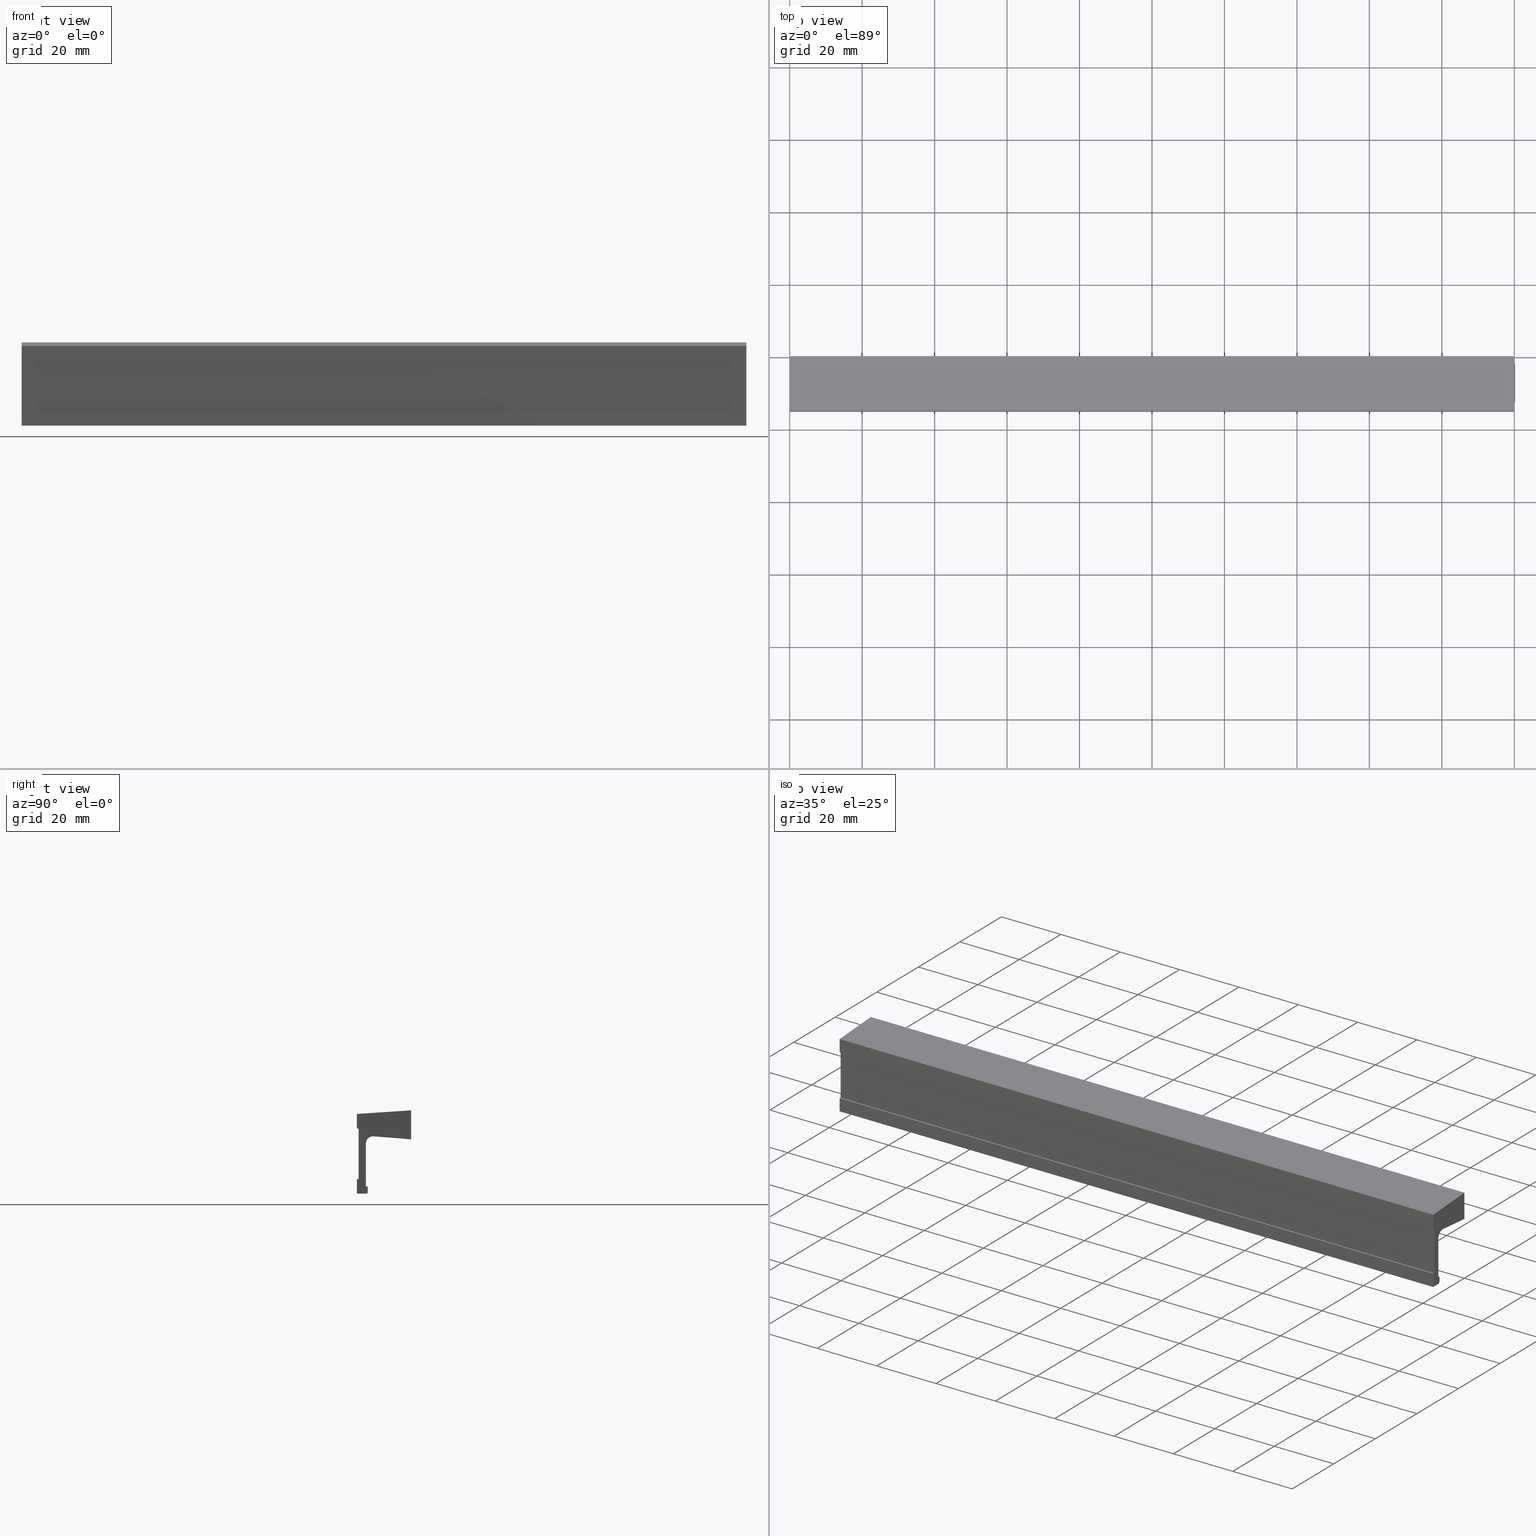
[diagram: canonical four-view strip — front | top / right | iso, engineering-drawing reading convention]
A machine part, canonical four-view strip (front | top / right | iso — engineering-drawing reading convention). The complete STEP part file that produces these views, byte-faithful:
ISO-10303-21;
HEADER;
/****************************************************************
 * Generated by software with PDE/Lib inside                    *
 * PDElib Version 4.4.1-0003, patched  Thursday August 19 11:58 *
 * International Technegroup Inc. (www.iti-oh.com)              *
 ****************************************************************/
FILE_DESCRIPTION((''),'2;1');
FILE_NAME('','2005-10-12T14:09:30',(''),(''),'','CADfix','');
FILE_SCHEMA(('AUTOMOTIVE_DESIGN'));
ENDSEC;
DATA;
#5=APPLICATION_CONTEXT('automotive design');
#6=APPLICATION_PROTOCOL_DEFINITION('Draft International Standard','automotive_design',1998,#5);
#7=PRODUCT_CONTEXT('None',#5,'mechanical');
#8=PRODUCT('pull','','None',(#7));
#9=PRODUCT_RELATED_PRODUCT_CATEGORY('part','description',(#8));
#10=PRODUCT_DEFINITION_FORMATION('None','None',#8);
#11=PRODUCT_DEFINITION_CONTEXT('part definition',#5,'design');
#12=PRODUCT_DEFINITION('None','None',#10,#11);
#18=(NAMED_UNIT(*)PLANE_ANGLE_UNIT()SI_UNIT($,.RADIAN.));
#19=DIMENSIONAL_EXPONENTS(0.0,0.0,0.0,0.0,0.0,0.0,0.0);
#20=PLANE_ANGLE_MEASURE_WITH_UNIT(PLANE_ANGLE_MEASURE(0.017453292500000),#18);
#24=(CONVERSION_BASED_UNIT('DEGREE',#20)NAMED_UNIT(#19)PLANE_ANGLE_UNIT());
#28=(NAMED_UNIT(*)SI_UNIT($,.STERADIAN.)SOLID_ANGLE_UNIT());
#32=(LENGTH_UNIT()NAMED_UNIT(*)SI_UNIT(.MILLI.,.METRE.));
#34=UNCERTAINTY_MEASURE_WITH_UNIT(LENGTH_MEASURE(0.001000000000000),#32,'DISTANCE_ACCURACY_VALUE','');
#36=(GEOMETRIC_REPRESENTATION_CONTEXT(3)GLOBAL_UNCERTAINTY_ASSIGNED_CONTEXT((#34))GLOBAL_UNIT_ASSIGNED_CONTEXT((#24,#28,#32))REPRESENTATION_CONTEXT('None','None'));
#37=AXIS2_PLACEMENT_3D('',#38,#39,#40);
#38=CARTESIAN_POINT('',(0.0,0.0,0.0));
#39=DIRECTION('',(0.0,0.0,1.0));
#40=DIRECTION('',(1.0,0.0,0.0));
#41=ADVANCED_BREP_SHAPE_REPRESENTATION('',(#37,#910),#36);
#42=PRODUCT_DEFINITION_SHAPE('','',#12);
#43=SHAPE_DEFINITION_REPRESENTATION(#42,#41);
#44=CARTESIAN_POINT('',(173.504623999400310,-10.250000000000000,-4.882311356408231));
#45=CARTESIAN_POINT('',(173.622312642992140,-10.250000000000002,-3.386935355808540));
#46=CARTESIAN_POINT('',(175.117688643591800,-10.250000000000000,-3.504623999400309));
#47=CARTESIAN_POINT('',(176.613064644191500,-10.250000000000002,-3.622312642992078));
#48=CARTESIAN_POINT('',(176.495376000599690,-10.250000000000000,-5.117688643591769));
#49=CARTESIAN_POINT('',(173.504623999400310,0.256250000000001,-4.882311356408231));
#50=CARTESIAN_POINT('',(173.622312642992140,0.256250000000001,-3.386935355808540));
#51=CARTESIAN_POINT('',(175.117688643591800,0.256250000000001,-3.504623999400309));
#52=CARTESIAN_POINT('',(176.613064644191500,0.256250000000001,-3.622312642992078));
#53=CARTESIAN_POINT('',(176.495376000599690,0.256250000000001,-5.117688643591769));
#61=(BOUNDED_SURFACE()B_SPLINE_SURFACE(2,1,((#44,#49),(#45,#50),(#46,#51),(#47,#52),(#48,#53)),.UNSPECIFIED.,.F.,.F.,.U.)B_SPLINE_SURFACE_WITH_KNOTS((3,2,3),(2,2),(3.141592653589793,4.712388980384690,6.283185307179586),(0.0,10.506250000000000),.UNSPECIFIED.)GEOMETRIC_REPRESENTATION_ITEM()RATIONAL_B_SPLINE_SURFACE(((1.0,1.0),(0.707106781186548,0.707106781186548),(1.0,1.0),(0.707106781186548,0.707106781186548),(1.0,1.0)))REPRESENTATION_ITEM('')SURFACE());
#62=CARTESIAN_POINT('',(175.0,-10.0,-3.500000000000000));
#63=VERTEX_POINT('',#62);
#64=CARTESIAN_POINT('',(173.504623999522810,-10.0,-4.882311354851246));
#65=VERTEX_POINT('',#64);
#66=CARTESIAN_POINT('',(175.0,-10.0,-3.500000000000000));
#67=CARTESIAN_POINT('',(173.613414265409090,-9.999999999999998,-3.500000000000000));
#68=CARTESIAN_POINT('',(173.504623999522810,-10.0,-4.882311354851246));
#76=(BOUNDED_CURVE()B_SPLINE_CURVE(2,(#66,#67,#68),.UNSPECIFIED.,.F.,.U.)B_SPLINE_CURVE_WITH_KNOTS((3,3),(0.0,0.236331300275792),.UNSPECIFIED.)CURVE()GEOMETRIC_REPRESENTATION_ITEM()RATIONAL_B_SPLINE_CURVE((1.0,0.723120659023419,0.969723355426837))REPRESENTATION_ITEM(''));
#77=EDGE_CURVE('',#63,#65,#76,.T.);
#78=ORIENTED_EDGE('',*,*,#77,.T.);
#79=CARTESIAN_POINT('',(173.504623999522810,-2.775558E-017,-4.882311354851245));
#80=VERTEX_POINT('',#79);
#81=CARTESIAN_POINT('',(173.504623999522810,-10.0,-4.882311354851246));
#82=CARTESIAN_POINT('',(173.504623999522810,-2.775558E-017,-4.882311354851245));
#83=QUASI_UNIFORM_CURVE('',1,(#81,#82),.UNSPECIFIED.,.F.,.U.);
#84=EDGE_CURVE('',#65,#80,#83,.T.);
#85=ORIENTED_EDGE('',*,*,#84,.T.);
#86=CARTESIAN_POINT('',(175.0,0.0,-3.500000000000000));
#87=VERTEX_POINT('',#86);
#88=CARTESIAN_POINT('',(175.0,0.0,-3.500000000000000));
#89=CARTESIAN_POINT('',(173.613414265409090,0.0,-3.500000000000000));
#90=CARTESIAN_POINT('',(173.504623999522810,-2.775558E-017,-4.882311354851245));
#98=(BOUNDED_CURVE()B_SPLINE_CURVE(2,(#88,#89,#90),.UNSPECIFIED.,.F.,.U.)B_SPLINE_CURVE_WITH_KNOTS((3,3),(0.0,0.236331300275792),.UNSPECIFIED.)CURVE()GEOMETRIC_REPRESENTATION_ITEM()RATIONAL_B_SPLINE_CURVE((1.0,0.723120659023419,0.969723355426837))REPRESENTATION_ITEM(''));
#99=EDGE_CURVE('',#87,#80,#98,.T.);
#100=ORIENTED_EDGE('',*,*,#99,.F.);
#101=CARTESIAN_POINT('',(176.495376000477190,-2.775558E-017,-5.117688645148755));
#102=VERTEX_POINT('',#101);
#103=CARTESIAN_POINT('',(176.495376000477170,-2.775558E-017,-5.117688645148755));
#104=CARTESIAN_POINT('',(176.500000000000030,0.0,-5.058935162075716));
#105=CARTESIAN_POINT('',(176.500000000000000,0.0,-5.0));
#106=CARTESIAN_POINT('',(176.500000000000060,0.0,-3.499999999999999));
#107=CARTESIAN_POINT('',(175.0,0.0,-3.500000000000000));
#115=(BOUNDED_CURVE()B_SPLINE_CURVE(2,(#103,#104,#105,#106,#107),.UNSPECIFIED.,.F.,.U.)B_SPLINE_CURVE_WITH_KNOTS((3,2,3),(0.736331300275792,0.750000000000000,1.0),.UNSPECIFIED.)CURVE()GEOMETRIC_REPRESENTATION_ITEM()RATIONAL_B_SPLINE_CURVE((0.969723355426837,0.983986122163129,1.0,0.707106781186548,1.0))REPRESENTATION_ITEM(''));
#116=EDGE_CURVE('',#102,#87,#115,.T.);
#117=ORIENTED_EDGE('',*,*,#116,.F.);
#118=CARTESIAN_POINT('',(176.495376000477190,-10.0,-5.117688645148753));
#119=VERTEX_POINT('',#118);
#120=CARTESIAN_POINT('',(176.495376000477190,-10.0,-5.117688645148753));
#121=CARTESIAN_POINT('',(176.495376000477190,-2.775558E-017,-5.117688645148755));
#122=QUASI_UNIFORM_CURVE('',1,(#120,#121),.UNSPECIFIED.,.F.,.U.);
#123=EDGE_CURVE('',#119,#102,#122,.T.);
#124=ORIENTED_EDGE('',*,*,#123,.F.);
#125=CARTESIAN_POINT('',(176.495376000477170,-10.0,-5.117688645148753));
#126=CARTESIAN_POINT('',(176.499999999999970,-10.0,-5.058935162075716));
#127=CARTESIAN_POINT('',(176.500000000000000,-10.0,-5.0));
#128=CARTESIAN_POINT('',(176.500000000000060,-10.000000000000002,-3.499999999999999));
#129=CARTESIAN_POINT('',(175.0,-10.0,-3.500000000000000));
#137=(BOUNDED_CURVE()B_SPLINE_CURVE(2,(#125,#126,#127,#128,#129),.UNSPECIFIED.,.F.,.U.)B_SPLINE_CURVE_WITH_KNOTS((3,2,3),(0.736331300275793,0.750000000000000,1.0),.UNSPECIFIED.)CURVE()GEOMETRIC_REPRESENTATION_ITEM()RATIONAL_B_SPLINE_CURVE((0.969723355426837,0.983986122163129,1.0,0.707106781186548,1.0))REPRESENTATION_ITEM(''));
#138=EDGE_CURVE('',#119,#63,#137,.T.);
#139=ORIENTED_EDGE('',*,*,#138,.T.);
#140=EDGE_LOOP('',(#78,#85,#100,#117,#124,#139));
#141=FACE_OUTER_BOUND('',#140,.T.);
#142=ADVANCED_FACE('',(#141),#61,.F.);
#143=CARTESIAN_POINT('',(176.495376000599690,-10.250000000000000,-5.117688643591769));
#144=CARTESIAN_POINT('',(176.377687357007910,-10.250000000000002,-6.613064644191461));
#145=CARTESIAN_POINT('',(174.882311356408200,-10.250000000000000,-6.495376000599691));
#146=CARTESIAN_POINT('',(173.386935355808590,-10.250000000000002,-6.377687357007923));
#147=CARTESIAN_POINT('',(173.504623999400310,-10.250000000000000,-4.882311356408231));
#148=CARTESIAN_POINT('',(176.495376000599690,0.256250000000001,-5.117688643591769));
#149=CARTESIAN_POINT('',(176.377687357007910,0.256250000000001,-6.613064644191461));
#150=CARTESIAN_POINT('',(174.882311356408200,0.256250000000001,-6.495376000599691));
#151=CARTESIAN_POINT('',(173.386935355808590,0.256250000000001,-6.377687357007923));
#152=CARTESIAN_POINT('',(173.504623999400310,0.256250000000001,-4.882311356408231));
#160=(BOUNDED_SURFACE()B_SPLINE_SURFACE(2,1,((#143,#148),(#144,#149),(#145,#150),(#146,#151),(#147,#152)),.UNSPECIFIED.,.F.,.F.,.U.)B_SPLINE_SURFACE_WITH_KNOTS((3,2,3),(2,2),(0.0,1.570796326794897,3.141592653589793),(0.0,10.506250000000000),.UNSPECIFIED.)GEOMETRIC_REPRESENTATION_ITEM()RATIONAL_B_SPLINE_SURFACE(((1.0,1.0),(0.707106781186548,0.707106781186548),(1.0,1.0),(0.707106781186548,0.707106781186548),(1.0,1.0)))REPRESENTATION_ITEM('')SURFACE());
#161=CARTESIAN_POINT('',(175.0,-10.0,-6.500000000000001));
#162=VERTEX_POINT('',#161);
#163=CARTESIAN_POINT('',(173.504623999522890,-10.0,-4.882311354851247));
#164=CARTESIAN_POINT('',(173.500000000000000,-10.000000000000002,-4.941064837924285));
#165=CARTESIAN_POINT('',(173.500000000000000,-10.0,-5.0));
#166=CARTESIAN_POINT('',(173.500000000000000,-10.000000000000002,-6.500000000000003));
#167=CARTESIAN_POINT('',(175.0,-10.0,-6.500000000000001));
#175=(BOUNDED_CURVE()B_SPLINE_CURVE(2,(#163,#164,#165,#166,#167),.UNSPECIFIED.,.F.,.U.)B_SPLINE_CURVE_WITH_KNOTS((3,2,3),(0.236331300275792,0.250000000000000,0.500000000000000),.UNSPECIFIED.)CURVE()GEOMETRIC_REPRESENTATION_ITEM()RATIONAL_B_SPLINE_CURVE((0.969723355426837,0.983986122163129,1.0,0.707106781186548,1.0))REPRESENTATION_ITEM(''));
#176=EDGE_CURVE('',#65,#162,#175,.T.);
#177=ORIENTED_EDGE('',*,*,#176,.T.);
#178=CARTESIAN_POINT('',(175.0,-10.0,-6.500000000000001));
#179=CARTESIAN_POINT('',(176.386585734590990,-10.0,-6.500000000000002));
#180=CARTESIAN_POINT('',(176.495376000477170,-10.0,-5.117688645148753));
#188=(BOUNDED_CURVE()B_SPLINE_CURVE(2,(#178,#179,#180),.UNSPECIFIED.,.F.,.U.)B_SPLINE_CURVE_WITH_KNOTS((3,3),(0.500000000000000,0.736331300275792),.UNSPECIFIED.)CURVE()GEOMETRIC_REPRESENTATION_ITEM()RATIONAL_B_SPLINE_CURVE((1.0,0.723120659023419,0.969723355426835))REPRESENTATION_ITEM(''));
#189=EDGE_CURVE('',#162,#119,#188,.T.);
#190=ORIENTED_EDGE('',*,*,#189,.T.);
#191=ORIENTED_EDGE('',*,*,#123,.T.);
#192=CARTESIAN_POINT('',(175.0,0.0,-6.500000000000001));
#193=VERTEX_POINT('',#192);
#194=CARTESIAN_POINT('',(175.0,0.0,-6.500000000000001));
#195=CARTESIAN_POINT('',(176.386585734590990,0.0,-6.500000000000002));
#196=CARTESIAN_POINT('',(176.495376000477170,-2.775558E-017,-5.117688645148755));
#204=(BOUNDED_CURVE()B_SPLINE_CURVE(2,(#194,#195,#196),.UNSPECIFIED.,.F.,.U.)B_SPLINE_CURVE_WITH_KNOTS((3,3),(0.500000000000000,0.736331300275792),.UNSPECIFIED.)CURVE()GEOMETRIC_REPRESENTATION_ITEM()RATIONAL_B_SPLINE_CURVE((1.0,0.723120659023419,0.969723355426835))REPRESENTATION_ITEM(''));
#205=EDGE_CURVE('',#193,#102,#204,.T.);
#206=ORIENTED_EDGE('',*,*,#205,.F.);
#207=CARTESIAN_POINT('',(173.504623999522810,-2.775558E-017,-4.882311354851245));
#208=CARTESIAN_POINT('',(173.500000000000000,0.0,-4.941064837924283));
#209=CARTESIAN_POINT('',(173.500000000000000,0.0,-5.0));
#210=CARTESIAN_POINT('',(173.500000000000000,0.0,-6.500000000000003));
#211=CARTESIAN_POINT('',(175.0,0.0,-6.500000000000001));
#219=(BOUNDED_CURVE()B_SPLINE_CURVE(2,(#207,#208,#209,#210,#211),.UNSPECIFIED.,.F.,.U.)B_SPLINE_CURVE_WITH_KNOTS((3,2,3),(0.236331300275792,0.250000000000000,0.500000000000000),.UNSPECIFIED.)CURVE()GEOMETRIC_REPRESENTATION_ITEM()RATIONAL_B_SPLINE_CURVE((0.969723355426837,0.983986122163129,1.0,0.707106781186548,1.0))REPRESENTATION_ITEM(''));
#220=EDGE_CURVE('',#80,#193,#219,.T.);
#221=ORIENTED_EDGE('',*,*,#220,.F.);
#222=ORIENTED_EDGE('',*,*,#84,.F.);
#223=EDGE_LOOP('',(#177,#190,#191,#206,#221,#222));
#224=FACE_OUTER_BOUND('',#223,.T.);
#225=ADVANCED_FACE('',(#224),#160,.F.);
#226=CARTESIAN_POINT('',(23.504623999400309,-10.250000000000000,-4.882311356408231));
#227=CARTESIAN_POINT('',(23.622312642992085,-10.250000000000002,-3.386935355808540));
#228=CARTESIAN_POINT('',(25.117688643591769,-10.250000000000000,-3.504623999400309));
#229=CARTESIAN_POINT('',(26.613064644191464,-10.250000000000002,-3.622312642992078));
#230=CARTESIAN_POINT('',(26.495376000599691,-10.250000000000000,-5.117688643591769));
#231=CARTESIAN_POINT('',(23.504623999400309,0.256250000000001,-4.882311356408231));
#232=CARTESIAN_POINT('',(23.622312642992085,0.256250000000001,-3.386935355808540));
#233=CARTESIAN_POINT('',(25.117688643591769,0.256250000000001,-3.504623999400309));
#234=CARTESIAN_POINT('',(26.613064644191464,0.256250000000001,-3.622312642992078));
#235=CARTESIAN_POINT('',(26.495376000599691,0.256250000000001,-5.117688643591769));
#243=(BOUNDED_SURFACE()B_SPLINE_SURFACE(2,1,((#226,#231),(#227,#232),(#228,#233),(#229,#234),(#230,#235)),.UNSPECIFIED.,.F.,.F.,.U.)B_SPLINE_SURFACE_WITH_KNOTS((3,2,3),(2,2),(3.141592653589793,4.712388980384690,6.283185307179586),(0.0,10.506250000000000),.UNSPECIFIED.)GEOMETRIC_REPRESENTATION_ITEM()RATIONAL_B_SPLINE_SURFACE(((1.0,1.0),(0.707106781186548,0.707106781186548),(1.0,1.0),(0.707106781186548,0.707106781186548),(1.0,1.0)))REPRESENTATION_ITEM('')SURFACE());
#244=CARTESIAN_POINT('',(25.0,-10.0,-3.500000000000000));
#245=VERTEX_POINT('',#244);
#246=CARTESIAN_POINT('',(23.504623999522849,-10.0,-4.882311354851246));
#247=VERTEX_POINT('',#246);
#248=CARTESIAN_POINT('',(25.0,-10.0,-3.500000000000000));
#249=CARTESIAN_POINT('',(23.613414265409062,-10.0,-3.500000000000000));
#250=CARTESIAN_POINT('',(23.504623999522845,-10.0,-4.882311354851247));
#258=(BOUNDED_CURVE()B_SPLINE_CURVE(2,(#248,#249,#250),.UNSPECIFIED.,.F.,.U.)B_SPLINE_CURVE_WITH_KNOTS((3,3),(0.0,0.236331300275792),.UNSPECIFIED.)CURVE()GEOMETRIC_REPRESENTATION_ITEM()RATIONAL_B_SPLINE_CURVE((1.0,0.723120659023418,0.969723355426837))REPRESENTATION_ITEM(''));
#259=EDGE_CURVE('',#245,#247,#258,.T.);
#260=ORIENTED_EDGE('',*,*,#259,.T.);
#261=CARTESIAN_POINT('',(23.504623999522849,-2.775558E-017,-4.882311354851245));
#262=VERTEX_POINT('',#261);
#263=CARTESIAN_POINT('',(23.504623999522849,-10.0,-4.882311354851246));
#264=CARTESIAN_POINT('',(23.504623999522849,-2.775558E-017,-4.882311354851245));
#265=QUASI_UNIFORM_CURVE('',1,(#263,#264),.UNSPECIFIED.,.F.,.U.);
#266=EDGE_CURVE('',#247,#262,#265,.T.);
#267=ORIENTED_EDGE('',*,*,#266,.T.);
#268=CARTESIAN_POINT('',(25.0,0.0,-3.500000000000000));
#269=VERTEX_POINT('',#268);
#270=CARTESIAN_POINT('',(25.0,0.0,-3.500000000000000));
#271=CARTESIAN_POINT('',(23.613414265409055,0.0,-3.500000000000000));
#272=CARTESIAN_POINT('',(23.504623999522853,-2.775558E-017,-4.882311354851245));
#280=(BOUNDED_CURVE()B_SPLINE_CURVE(2,(#270,#271,#272),.UNSPECIFIED.,.F.,.U.)B_SPLINE_CURVE_WITH_KNOTS((3,3),(0.0,0.236331300275792),.UNSPECIFIED.)CURVE()GEOMETRIC_REPRESENTATION_ITEM()RATIONAL_B_SPLINE_CURVE((1.0,0.723120659023419,0.969723355426837))REPRESENTATION_ITEM(''));
#281=EDGE_CURVE('',#269,#262,#280,.T.);
#282=ORIENTED_EDGE('',*,*,#281,.F.);
#283=CARTESIAN_POINT('',(26.495376000477162,-2.775558E-017,-5.117688645148755));
#284=VERTEX_POINT('',#283);
#285=CARTESIAN_POINT('',(26.495376000477151,-2.775558E-017,-5.117688645148756));
#286=CARTESIAN_POINT('',(26.500000000000007,0.0,-5.058935162075717));
#287=CARTESIAN_POINT('',(26.500000000000000,0.0,-5.0));
#288=CARTESIAN_POINT('',(26.500000000000000,0.0,-3.499999999999999));
#289=CARTESIAN_POINT('',(25.0,0.0,-3.500000000000000));
#297=(BOUNDED_CURVE()B_SPLINE_CURVE(2,(#285,#286,#287,#288,#289),.UNSPECIFIED.,.F.,.U.)B_SPLINE_CURVE_WITH_KNOTS((3,2,3),(0.736331300275792,0.750000000000000,1.0),.UNSPECIFIED.)CURVE()GEOMETRIC_REPRESENTATION_ITEM()RATIONAL_B_SPLINE_CURVE((0.969723355426837,0.983986122163129,1.0,0.707106781186548,1.0))REPRESENTATION_ITEM(''));
#298=EDGE_CURVE('',#284,#269,#297,.T.);
#299=ORIENTED_EDGE('',*,*,#298,.F.);
#300=CARTESIAN_POINT('',(26.495376000477162,-10.0,-5.117688645148753));
#301=VERTEX_POINT('',#300);
#302=CARTESIAN_POINT('',(26.495376000477162,-10.0,-5.117688645148753));
#303=CARTESIAN_POINT('',(26.495376000477162,-2.775558E-017,-5.117688645148755));
#304=QUASI_UNIFORM_CURVE('',1,(#302,#303),.UNSPECIFIED.,.F.,.U.);
#305=EDGE_CURVE('',#301,#284,#304,.T.);
#306=ORIENTED_EDGE('',*,*,#305,.F.);
#307=CARTESIAN_POINT('',(26.495376000477162,-9.999999999999998,-5.117688645148753));
#308=CARTESIAN_POINT('',(26.500000000000007,-10.0,-5.058935162075717));
#309=CARTESIAN_POINT('',(26.500000000000000,-10.0,-5.0));
#310=CARTESIAN_POINT('',(26.500000000000000,-10.000000000000002,-3.499999999999999));
#311=CARTESIAN_POINT('',(25.0,-10.0,-3.500000000000000));
#319=(BOUNDED_CURVE()B_SPLINE_CURVE(2,(#307,#308,#309,#310,#311),.UNSPECIFIED.,.F.,.U.)B_SPLINE_CURVE_WITH_KNOTS((3,2,3),(0.736331300275792,0.750000000000000,1.0),.UNSPECIFIED.)CURVE()GEOMETRIC_REPRESENTATION_ITEM()RATIONAL_B_SPLINE_CURVE((0.969723355426837,0.983986122163129,1.0,0.707106781186548,1.0))REPRESENTATION_ITEM(''));
#320=EDGE_CURVE('',#301,#245,#319,.T.);
#321=ORIENTED_EDGE('',*,*,#320,.T.);
#322=EDGE_LOOP('',(#260,#267,#282,#299,#306,#321));
#323=FACE_OUTER_BOUND('',#322,.T.);
#324=ADVANCED_FACE('',(#323),#243,.F.);
#325=CARTESIAN_POINT('',(26.495376000599691,-10.250000000000000,-5.117688643591769));
#326=CARTESIAN_POINT('',(26.377687357007918,-10.250000000000002,-6.613064644191461));
#327=CARTESIAN_POINT('',(24.882311356408231,-10.250000000000000,-6.495376000599691));
#328=CARTESIAN_POINT('',(23.386935355808536,-10.250000000000002,-6.377687357007923));
#329=CARTESIAN_POINT('',(23.504623999400309,-10.250000000000000,-4.882311356408231));
#330=CARTESIAN_POINT('',(26.495376000599691,0.256250000000001,-5.117688643591769));
#331=CARTESIAN_POINT('',(26.377687357007918,0.256250000000001,-6.613064644191461));
#332=CARTESIAN_POINT('',(24.882311356408231,0.256250000000001,-6.495376000599691));
#333=CARTESIAN_POINT('',(23.386935355808536,0.256250000000001,-6.377687357007923));
#334=CARTESIAN_POINT('',(23.504623999400309,0.256250000000001,-4.882311356408231));
#342=(BOUNDED_SURFACE()B_SPLINE_SURFACE(2,1,((#325,#330),(#326,#331),(#327,#332),(#328,#333),(#329,#334)),.UNSPECIFIED.,.F.,.F.,.U.)B_SPLINE_SURFACE_WITH_KNOTS((3,2,3),(2,2),(0.0,1.570796326794897,3.141592653589793),(0.0,10.506250000000000),.UNSPECIFIED.)GEOMETRIC_REPRESENTATION_ITEM()RATIONAL_B_SPLINE_SURFACE(((1.0,1.0),(0.707106781186548,0.707106781186548),(1.0,1.0),(0.707106781186548,0.707106781186548),(1.0,1.0)))REPRESENTATION_ITEM('')SURFACE());
#343=CARTESIAN_POINT('',(25.0,-10.0,-6.500000000000001));
#344=VERTEX_POINT('',#343);
#345=CARTESIAN_POINT('',(23.504623999522842,-9.999999999999998,-4.882311354851246));
#346=CARTESIAN_POINT('',(23.500000000000004,-10.0,-4.941064837924284));
#347=CARTESIAN_POINT('',(23.500000000000000,-10.0,-5.0));
#348=CARTESIAN_POINT('',(23.500000000000004,-10.000000000000002,-6.500000000000003));
#349=CARTESIAN_POINT('',(25.0,-10.0,-6.500000000000001));
#357=(BOUNDED_CURVE()B_SPLINE_CURVE(2,(#345,#346,#347,#348,#349),.UNSPECIFIED.,.F.,.U.)B_SPLINE_CURVE_WITH_KNOTS((3,2,3),(0.236331300275792,0.250000000000000,0.500000000000000),.UNSPECIFIED.)CURVE()GEOMETRIC_REPRESENTATION_ITEM()RATIONAL_B_SPLINE_CURVE((0.969723355426837,0.983986122163129,1.0,0.707106781186548,1.0))REPRESENTATION_ITEM(''));
#358=EDGE_CURVE('',#247,#344,#357,.T.);
#359=ORIENTED_EDGE('',*,*,#358,.T.);
#360=CARTESIAN_POINT('',(25.0,-10.0,-6.500000000000001));
#361=CARTESIAN_POINT('',(26.386585734590945,-10.0,-6.500000000000002));
#362=CARTESIAN_POINT('',(26.495376000477162,-10.0,-5.117688645148753));
#370=(BOUNDED_CURVE()B_SPLINE_CURVE(2,(#360,#361,#362),.UNSPECIFIED.,.F.,.U.)B_SPLINE_CURVE_WITH_KNOTS((3,3),(0.500000000000000,0.736331300275792),.UNSPECIFIED.)CURVE()GEOMETRIC_REPRESENTATION_ITEM()RATIONAL_B_SPLINE_CURVE((1.0,0.723120659023419,0.969723355426835))REPRESENTATION_ITEM(''));
#371=EDGE_CURVE('',#344,#301,#370,.T.);
#372=ORIENTED_EDGE('',*,*,#371,.T.);
#373=ORIENTED_EDGE('',*,*,#305,.T.);
#374=CARTESIAN_POINT('',(25.0,0.0,-6.500000000000001));
#375=VERTEX_POINT('',#374);
#376=CARTESIAN_POINT('',(25.0,0.0,-6.500000000000001));
#377=CARTESIAN_POINT('',(26.386585734590945,0.0,-6.500000000000002));
#378=CARTESIAN_POINT('',(26.495376000477155,-2.775558E-017,-5.117688645148755));
#386=(BOUNDED_CURVE()B_SPLINE_CURVE(2,(#376,#377,#378),.UNSPECIFIED.,.F.,.U.)B_SPLINE_CURVE_WITH_KNOTS((3,3),(0.500000000000000,0.736331300275792),.UNSPECIFIED.)CURVE()GEOMETRIC_REPRESENTATION_ITEM()RATIONAL_B_SPLINE_CURVE((1.0,0.723120659023419,0.969723355426835))REPRESENTATION_ITEM(''));
#387=EDGE_CURVE('',#375,#284,#386,.T.);
#388=ORIENTED_EDGE('',*,*,#387,.F.);
#389=CARTESIAN_POINT('',(23.504623999522853,-2.775558E-017,-4.882311354851245));
#390=CARTESIAN_POINT('',(23.500000000000004,0.0,-4.941064837924283));
#391=CARTESIAN_POINT('',(23.500000000000000,0.0,-5.0));
#392=CARTESIAN_POINT('',(23.500000000000004,0.0,-6.500000000000003));
#393=CARTESIAN_POINT('',(25.0,0.0,-6.500000000000001));
#401=(BOUNDED_CURVE()B_SPLINE_CURVE(2,(#389,#390,#391,#392,#393),.UNSPECIFIED.,.F.,.U.)B_SPLINE_CURVE_WITH_KNOTS((3,2,3),(0.236331300275792,0.250000000000000,0.500000000000000),.UNSPECIFIED.)CURVE()GEOMETRIC_REPRESENTATION_ITEM()RATIONAL_B_SPLINE_CURVE((0.969723355426837,0.983986122163129,1.0,0.707106781186548,1.0))REPRESENTATION_ITEM(''));
#402=EDGE_CURVE('',#262,#375,#401,.T.);
#403=ORIENTED_EDGE('',*,*,#402,.F.);
#404=ORIENTED_EDGE('',*,*,#266,.F.);
#405=EDGE_LOOP('',(#359,#372,#373,#388,#403,#404));
#406=FACE_OUTER_BOUND('',#405,.T.);
#407=ADVANCED_FACE('',(#406),#342,.F.);
#408=CARTESIAN_POINT('',(173.350603150667410,-10.0,-3.350150005814582));
#409=CARTESIAN_POINT('',(176.649396929799000,-10.0,-3.350150005814582));
#410=CARTESIAN_POINT('',(173.350603150667410,-10.0,-6.649850074651688));
#411=CARTESIAN_POINT('',(176.649396929799000,-10.0,-6.649850074651688));
#412=B_SPLINE_SURFACE_WITH_KNOTS('',1,1,((#408,#410),(#409,#411)),.UNSPECIFIED.,.F.,.F.,.U.,(2,2),(2,2),(0.0,3.298793779131614),(0.0,3.299700068837106),.UNSPECIFIED.);
#413=ORIENTED_EDGE('',*,*,#138,.F.);
#414=ORIENTED_EDGE('',*,*,#189,.F.);
#415=ORIENTED_EDGE('',*,*,#176,.F.);
#416=ORIENTED_EDGE('',*,*,#77,.F.);
#417=EDGE_LOOP('',(#413,#414,#415,#416));
#418=FACE_OUTER_BOUND('',#417,.T.);
#419=ADVANCED_FACE('',(#418),#412,.T.);
#420=CARTESIAN_POINT('',(23.350607342576449,-10.0,-3.350150005814582));
#421=CARTESIAN_POINT('',(26.649392684245651,-10.0,-3.350150005814582));
#422=CARTESIAN_POINT('',(23.350607342576449,-10.0,-6.649850074651688));
#423=CARTESIAN_POINT('',(26.649392684245651,-10.0,-6.649850074651688));
#424=B_SPLINE_SURFACE_WITH_KNOTS('',1,1,((#420,#422),(#421,#423)),.UNSPECIFIED.,.F.,.F.,.U.,(2,2),(2,2),(0.0,3.298785341669206),(0.0,3.299700068837106),.UNSPECIFIED.);
#425=ORIENTED_EDGE('',*,*,#320,.F.);
#426=ORIENTED_EDGE('',*,*,#371,.F.);
#427=ORIENTED_EDGE('',*,*,#358,.F.);
#428=ORIENTED_EDGE('',*,*,#259,.F.);
#429=EDGE_LOOP('',(#425,#426,#427,#428));
#430=FACE_OUTER_BOUND('',#429,.T.);
#431=ADVANCED_FACE('',(#430),#424,.T.);
#432=CARTESIAN_POINT('',(0.0,-15.749249970927091,1.148849955421536));
#433=CARTESIAN_POINT('',(0.0,0.749250373258442,1.148849955421536));
#434=CARTESIAN_POINT('',(0.0,-15.749249970927091,-24.148850572329611));
#435=CARTESIAN_POINT('',(0.0,0.749250373258442,-24.148850572329611));
#436=B_SPLINE_SURFACE_WITH_KNOTS('',1,1,((#432,#434),(#433,#435)),.UNSPECIFIED.,.F.,.F.,.U.,(2,2),(2,2),(0.0,16.498500344185530),(0.0,25.297700527751150),.UNSPECIFIED.);
#437=CARTESIAN_POINT('',(0.0,-15.0,-1.0));
#438=VERTEX_POINT('',#437);
#439=CARTESIAN_POINT('',(0.0,-15.0,-5.0));
#440=VERTEX_POINT('',#439);
#441=CARTESIAN_POINT('',(0.0,-15.0,-1.0));
#442=CARTESIAN_POINT('',(0.0,-15.0,-5.0));
#443=QUASI_UNIFORM_CURVE('',1,(#441,#442),.UNSPECIFIED.,.F.,.U.);
#444=EDGE_CURVE('',#438,#440,#443,.T.);
#445=ORIENTED_EDGE('',*,*,#444,.F.);
#446=CARTESIAN_POINT('',(0.0,0.0,0.0));
#447=VERTEX_POINT('',#446);
#448=CARTESIAN_POINT('',(0.0,0.0,0.0));
#449=CARTESIAN_POINT('',(0.0,-15.0,-1.0));
#450=QUASI_UNIFORM_CURVE('',1,(#448,#449),.UNSPECIFIED.,.F.,.U.);
#451=EDGE_CURVE('',#447,#438,#450,.T.);
#452=ORIENTED_EDGE('',*,*,#451,.F.);
#453=CARTESIAN_POINT('',(0.0,0.0,-8.0));
#454=VERTEX_POINT('',#453);
#455=CARTESIAN_POINT('',(0.0,0.0,-8.0));
#456=CARTESIAN_POINT('',(0.0,0.0,0.0));
#457=QUASI_UNIFORM_CURVE('',1,(#455,#456),.UNSPECIFIED.,.F.,.U.);
#458=EDGE_CURVE('',#454,#447,#457,.T.);
#459=ORIENTED_EDGE('',*,*,#458,.F.);
#460=CARTESIAN_POINT('',(0.0,-10.340509564477580,-7.172759442204180));
#461=VERTEX_POINT('',#460);
#462=CARTESIAN_POINT('',(0.0,-10.340509564477580,-7.172759442204180));
#463=CARTESIAN_POINT('',(0.0,0.0,-8.0));
#464=QUASI_UNIFORM_CURVE('',1,(#462,#463),.UNSPECIFIED.,.F.,.U.);
#465=EDGE_CURVE('',#461,#454,#464,.T.);
#466=ORIENTED_EDGE('',*,*,#465,.F.);
#467=CARTESIAN_POINT('',(0.0,-12.500000000000000,-9.166389999999892));
#468=VERTEX_POINT('',#467);
#469=CARTESIAN_POINT('',(0.0,-10.340509564477580,-7.172759442204172));
#470=CARTESIAN_POINT('',(0.0,-11.213307623162233,-7.102935601493860));
#471=CARTESIAN_POINT('',(0.0,-11.856653811581120,-7.696869521911061));
#472=CARTESIAN_POINT('',(0.0,-12.500000000000004,-8.290803442328263));
#473=CARTESIAN_POINT('',(0.0,-12.500000000000000,-9.166389999999892));
#481=(BOUNDED_CURVE()B_SPLINE_CURVE(2,(#469,#470,#471,#472,#473),.UNSPECIFIED.,.F.,.U.)B_SPLINE_CURVE_WITH_KNOTS((3,2,3),(0.0,0.500000000000000,1.0),.UNSPECIFIED.)CURVE()GEOMETRIC_REPRESENTATION_ITEM()RATIONAL_B_SPLINE_CURVE((1.0,0.916058651449393,1.0,0.916058651449393,1.0))REPRESENTATION_ITEM(''));
#482=EDGE_CURVE('',#461,#468,#481,.T.);
#483=ORIENTED_EDGE('',*,*,#482,.T.);
#484=CARTESIAN_POINT('',(0.0,-12.500000000000000,-21.0));
#485=VERTEX_POINT('',#484);
#486=CARTESIAN_POINT('',(0.0,-12.500000000000000,-21.0));
#487=CARTESIAN_POINT('',(0.0,-12.500000000000000,-9.166389999999892));
#488=QUASI_UNIFORM_CURVE('',1,(#486,#487),.UNSPECIFIED.,.F.,.U.);
#489=EDGE_CURVE('',#485,#468,#488,.T.);
#490=ORIENTED_EDGE('',*,*,#489,.F.);
#491=CARTESIAN_POINT('',(0.0,-12.0,-21.0));
#492=VERTEX_POINT('',#491);
#493=CARTESIAN_POINT('',(0.0,-12.0,-21.0));
#494=CARTESIAN_POINT('',(0.0,-12.500000000000000,-21.0));
#495=QUASI_UNIFORM_CURVE('',1,(#493,#494),.UNSPECIFIED.,.F.,.U.);
#496=EDGE_CURVE('',#492,#485,#495,.T.);
#497=ORIENTED_EDGE('',*,*,#496,.F.);
#498=CARTESIAN_POINT('',(0.0,-12.0,-22.699999999999999));
#499=VERTEX_POINT('',#498);
#500=CARTESIAN_POINT('',(0.0,-12.0,-22.699999999999999));
#501=CARTESIAN_POINT('',(0.0,-12.0,-21.0));
#502=QUASI_UNIFORM_CURVE('',1,(#500,#501),.UNSPECIFIED.,.F.,.U.);
#503=EDGE_CURVE('',#499,#492,#502,.T.);
#504=ORIENTED_EDGE('',*,*,#503,.F.);
#505=CARTESIAN_POINT('',(0.0,-12.300000000000001,-23.0));
#506=VERTEX_POINT('',#505);
#507=CARTESIAN_POINT('',(0.0,-12.300000000000001,-23.0));
#508=CARTESIAN_POINT('',(0.0,-12.0,-22.699999999999999));
#509=QUASI_UNIFORM_CURVE('',1,(#507,#508),.UNSPECIFIED.,.F.,.U.);
#510=EDGE_CURVE('',#506,#499,#509,.T.);
#511=ORIENTED_EDGE('',*,*,#510,.F.);
#512=CARTESIAN_POINT('',(0.0,-15.0,-23.0));
#513=VERTEX_POINT('',#512);
#514=CARTESIAN_POINT('',(0.0,-15.0,-23.0));
#515=CARTESIAN_POINT('',(0.0,-12.300000000000001,-23.0));
#516=QUASI_UNIFORM_CURVE('',1,(#514,#515),.UNSPECIFIED.,.F.,.U.);
#517=EDGE_CURVE('',#513,#506,#516,.T.);
#518=ORIENTED_EDGE('',*,*,#517,.F.);
#519=CARTESIAN_POINT('',(0.0,-15.0,-19.0));
#520=VERTEX_POINT('',#519);
#521=CARTESIAN_POINT('',(0.0,-15.0,-19.0));
#522=CARTESIAN_POINT('',(0.0,-15.0,-23.0));
#523=QUASI_UNIFORM_CURVE('',1,(#521,#522),.UNSPECIFIED.,.F.,.U.);
#524=EDGE_CURVE('',#520,#513,#523,.T.);
#525=ORIENTED_EDGE('',*,*,#524,.F.);
#526=CARTESIAN_POINT('',(0.0,-14.500000000000000,-19.0));
#527=VERTEX_POINT('',#526);
#528=CARTESIAN_POINT('',(0.0,-14.500000000000000,-19.0));
#529=CARTESIAN_POINT('',(0.0,-15.0,-19.0));
#530=QUASI_UNIFORM_CURVE('',1,(#528,#529),.UNSPECIFIED.,.F.,.U.);
#531=EDGE_CURVE('',#527,#520,#530,.T.);
#532=ORIENTED_EDGE('',*,*,#531,.F.);
#533=CARTESIAN_POINT('',(0.0,-14.500000000000000,-5.0));
#534=VERTEX_POINT('',#533);
#535=CARTESIAN_POINT('',(0.0,-14.500000000000000,-5.0));
#536=CARTESIAN_POINT('',(0.0,-14.500000000000000,-19.0));
#537=QUASI_UNIFORM_CURVE('',1,(#535,#536),.UNSPECIFIED.,.F.,.U.);
#538=EDGE_CURVE('',#534,#527,#537,.T.);
#539=ORIENTED_EDGE('',*,*,#538,.F.);
#540=CARTESIAN_POINT('',(0.0,-15.0,-5.0));
#541=CARTESIAN_POINT('',(0.0,-14.500000000000000,-5.0));
#542=QUASI_UNIFORM_CURVE('',1,(#540,#541),.UNSPECIFIED.,.F.,.U.);
#543=EDGE_CURVE('',#440,#534,#542,.T.);
#544=ORIENTED_EDGE('',*,*,#543,.F.);
#545=EDGE_LOOP('',(#445,#452,#459,#466,#483,#490,#497,#504,#511,#518,#525,#532,#539,#544));
#546=FACE_OUTER_BOUND('',#545,.T.);
#547=ADVANCED_FACE('',(#546),#436,.T.);
#548=CARTESIAN_POINT('',(200.0,-15.749249970927091,1.148849955421536));
#549=CARTESIAN_POINT('',(200.0,0.749250373258442,1.148849955421536));
#550=CARTESIAN_POINT('',(200.0,-15.749249970927091,-24.148850572329611));
#551=CARTESIAN_POINT('',(200.0,0.749250373258442,-24.148850572329611));
#552=B_SPLINE_SURFACE_WITH_KNOTS('',1,1,((#548,#550),(#549,#551)),.UNSPECIFIED.,.F.,.F.,.U.,(2,2),(2,2),(0.0,16.498500344185530),(0.0,25.297700527751150),.UNSPECIFIED.);
#553=CARTESIAN_POINT('',(200.0,-15.0,-1.0));
#554=VERTEX_POINT('',#553);
#555=CARTESIAN_POINT('',(200.0,-15.0,-5.0));
#556=VERTEX_POINT('',#555);
#557=CARTESIAN_POINT('',(200.0,-15.0,-1.0));
#558=CARTESIAN_POINT('',(200.0,-15.0,-5.0));
#559=QUASI_UNIFORM_CURVE('',1,(#557,#558),.UNSPECIFIED.,.F.,.U.);
#560=EDGE_CURVE('',#554,#556,#559,.T.);
#561=ORIENTED_EDGE('',*,*,#560,.T.);
#562=CARTESIAN_POINT('',(200.0,-14.500000000000000,-5.0));
#563=VERTEX_POINT('',#562);
#564=CARTESIAN_POINT('',(200.0,-15.0,-5.0));
#565=CARTESIAN_POINT('',(200.0,-14.500000000000000,-5.0));
#566=QUASI_UNIFORM_CURVE('',1,(#564,#565),.UNSPECIFIED.,.F.,.U.);
#567=EDGE_CURVE('',#556,#563,#566,.T.);
#568=ORIENTED_EDGE('',*,*,#567,.T.);
#569=CARTESIAN_POINT('',(200.0,-14.500000000000000,-19.0));
#570=VERTEX_POINT('',#569);
#571=CARTESIAN_POINT('',(200.0,-14.500000000000000,-5.0));
#572=CARTESIAN_POINT('',(200.0,-14.500000000000000,-19.0));
#573=QUASI_UNIFORM_CURVE('',1,(#571,#572),.UNSPECIFIED.,.F.,.U.);
#574=EDGE_CURVE('',#563,#570,#573,.T.);
#575=ORIENTED_EDGE('',*,*,#574,.T.);
#576=CARTESIAN_POINT('',(200.0,-15.0,-19.0));
#577=VERTEX_POINT('',#576);
#578=CARTESIAN_POINT('',(200.0,-14.500000000000000,-19.0));
#579=CARTESIAN_POINT('',(200.0,-15.0,-19.0));
#580=QUASI_UNIFORM_CURVE('',1,(#578,#579),.UNSPECIFIED.,.F.,.U.);
#581=EDGE_CURVE('',#570,#577,#580,.T.);
#582=ORIENTED_EDGE('',*,*,#581,.T.);
#583=CARTESIAN_POINT('',(200.0,-15.0,-23.0));
#584=VERTEX_POINT('',#583);
#585=CARTESIAN_POINT('',(200.0,-15.0,-19.0));
#586=CARTESIAN_POINT('',(200.0,-15.0,-23.0));
#587=QUASI_UNIFORM_CURVE('',1,(#585,#586),.UNSPECIFIED.,.F.,.U.);
#588=EDGE_CURVE('',#577,#584,#587,.T.);
#589=ORIENTED_EDGE('',*,*,#588,.T.);
#590=CARTESIAN_POINT('',(200.0,-12.300000000000001,-23.0));
#591=VERTEX_POINT('',#590);
#592=CARTESIAN_POINT('',(200.0,-15.0,-23.0));
#593=CARTESIAN_POINT('',(200.0,-12.300000000000001,-23.0));
#594=QUASI_UNIFORM_CURVE('',1,(#592,#593),.UNSPECIFIED.,.F.,.U.);
#595=EDGE_CURVE('',#584,#591,#594,.T.);
#596=ORIENTED_EDGE('',*,*,#595,.T.);
#597=CARTESIAN_POINT('',(200.0,-12.0,-22.699999999999999));
#598=VERTEX_POINT('',#597);
#599=CARTESIAN_POINT('',(200.0,-12.300000000000001,-23.0));
#600=CARTESIAN_POINT('',(200.0,-12.0,-22.699999999999999));
#601=QUASI_UNIFORM_CURVE('',1,(#599,#600),.UNSPECIFIED.,.F.,.U.);
#602=EDGE_CURVE('',#591,#598,#601,.T.);
#603=ORIENTED_EDGE('',*,*,#602,.T.);
#604=CARTESIAN_POINT('',(200.0,-12.0,-21.0));
#605=VERTEX_POINT('',#604);
#606=CARTESIAN_POINT('',(200.0,-12.0,-22.699999999999999));
#607=CARTESIAN_POINT('',(200.0,-12.0,-21.0));
#608=QUASI_UNIFORM_CURVE('',1,(#606,#607),.UNSPECIFIED.,.F.,.U.);
#609=EDGE_CURVE('',#598,#605,#608,.T.);
#610=ORIENTED_EDGE('',*,*,#609,.T.);
#611=CARTESIAN_POINT('',(200.0,-12.500000000000000,-21.0));
#612=VERTEX_POINT('',#611);
#613=CARTESIAN_POINT('',(200.0,-12.0,-21.0));
#614=CARTESIAN_POINT('',(200.0,-12.500000000000000,-21.0));
#615=QUASI_UNIFORM_CURVE('',1,(#613,#614),.UNSPECIFIED.,.F.,.U.);
#616=EDGE_CURVE('',#605,#612,#615,.T.);
#617=ORIENTED_EDGE('',*,*,#616,.T.);
#618=CARTESIAN_POINT('',(200.0,-12.500000000000000,-9.166389999999892));
#619=VERTEX_POINT('',#618);
#620=CARTESIAN_POINT('',(200.0,-12.500000000000000,-21.0));
#621=CARTESIAN_POINT('',(200.0,-12.500000000000000,-9.166389999999892));
#622=QUASI_UNIFORM_CURVE('',1,(#620,#621),.UNSPECIFIED.,.F.,.U.);
#623=EDGE_CURVE('',#612,#619,#622,.T.);
#624=ORIENTED_EDGE('',*,*,#623,.T.);
#625=CARTESIAN_POINT('',(200.0,-10.340509564477580,-7.172759442204180));
#626=VERTEX_POINT('',#625);
#627=CARTESIAN_POINT('',(200.0,-10.340509564477580,-7.172759442204172));
#628=CARTESIAN_POINT('',(199.999999999999970,-11.213307623162233,-7.102935601493860));
#629=CARTESIAN_POINT('',(200.0,-11.856653811581120,-7.696869521911061));
#630=CARTESIAN_POINT('',(199.999999999999970,-12.500000000000004,-8.290803442328263));
#631=CARTESIAN_POINT('',(200.0,-12.500000000000000,-9.166389999999892));
#639=(BOUNDED_CURVE()B_SPLINE_CURVE(2,(#627,#628,#629,#630,#631),.UNSPECIFIED.,.F.,.U.)B_SPLINE_CURVE_WITH_KNOTS((3,2,3),(0.0,0.500000000000000,1.0),.UNSPECIFIED.)CURVE()GEOMETRIC_REPRESENTATION_ITEM()RATIONAL_B_SPLINE_CURVE((1.0,0.916058651449393,1.0,0.916058651449393,1.0))REPRESENTATION_ITEM(''));
#640=EDGE_CURVE('',#626,#619,#639,.T.);
#641=ORIENTED_EDGE('',*,*,#640,.F.);
#642=CARTESIAN_POINT('',(200.0,0.0,-8.0));
#643=VERTEX_POINT('',#642);
#644=CARTESIAN_POINT('',(200.0,-10.340509564477580,-7.172759442204180));
#645=CARTESIAN_POINT('',(200.0,0.0,-8.0));
#646=QUASI_UNIFORM_CURVE('',1,(#644,#645),.UNSPECIFIED.,.F.,.U.);
#647=EDGE_CURVE('',#626,#643,#646,.T.);
#648=ORIENTED_EDGE('',*,*,#647,.T.);
#649=CARTESIAN_POINT('',(200.0,0.0,0.0));
#650=VERTEX_POINT('',#649);
#651=CARTESIAN_POINT('',(200.0,0.0,-8.0));
#652=CARTESIAN_POINT('',(200.0,0.0,0.0));
#653=QUASI_UNIFORM_CURVE('',1,(#651,#652),.UNSPECIFIED.,.F.,.U.);
#654=EDGE_CURVE('',#643,#650,#653,.T.);
#655=ORIENTED_EDGE('',*,*,#654,.T.);
#656=CARTESIAN_POINT('',(200.0,0.0,0.0));
#657=CARTESIAN_POINT('',(200.0,-15.0,-1.0));
#658=QUASI_UNIFORM_CURVE('',1,(#656,#657),.UNSPECIFIED.,.F.,.U.);
#659=EDGE_CURVE('',#650,#554,#658,.T.);
#660=ORIENTED_EDGE('',*,*,#659,.T.);
#661=EDGE_LOOP('',(#561,#568,#575,#582,#589,#596,#603,#610,#617,#624,#641,#648,#655,#660));
#662=FACE_OUTER_BOUND('',#661,.T.);
#663=ADVANCED_FACE('',(#662),#552,.F.);
#664=CARTESIAN_POINT('',(-9.989999612361194,-15.749249970927091,-1.049949998061812));
#665=CARTESIAN_POINT('',(-9.989999612361194,0.749250373258442,0.049950024883896));
#666=CARTESIAN_POINT('',(209.990004976779200,-15.749249970927091,-1.049949998061812));
#667=CARTESIAN_POINT('',(209.990004976779200,0.749250373258442,0.049950024883896));
#668=B_SPLINE_SURFACE_WITH_KNOTS('',1,1,((#664,#666),(#665,#667)),.UNSPECIFIED.,.F.,.F.,.U.,(2,2),(2,2),(0.0,16.535123031521898),(0.0,219.980004589140410),.UNSPECIFIED.);
#669=ORIENTED_EDGE('',*,*,#451,.T.);
#670=CARTESIAN_POINT('',(200.0,-15.0,-1.0));
#671=CARTESIAN_POINT('',(0.0,-15.0,-1.0));
#672=QUASI_UNIFORM_CURVE('',1,(#670,#671),.UNSPECIFIED.,.F.,.U.);
#673=EDGE_CURVE('',#554,#438,#672,.T.);
#674=ORIENTED_EDGE('',*,*,#673,.F.);
#675=ORIENTED_EDGE('',*,*,#659,.F.);
#676=CARTESIAN_POINT('',(200.0,0.0,0.0));
#677=CARTESIAN_POINT('',(0.0,0.0,0.0));
#678=QUASI_UNIFORM_CURVE('',1,(#676,#677),.UNSPECIFIED.,.F.,.U.);
#679=EDGE_CURVE('',#650,#447,#678,.T.);
#680=ORIENTED_EDGE('',*,*,#679,.T.);
#681=EDGE_LOOP('',(#669,#674,#675,#680));
#682=FACE_OUTER_BOUND('',#681,.T.);
#683=ADVANCED_FACE('',(#682),#668,.F.);
#684=CARTESIAN_POINT('',(-9.989999612361183,0.516508394142709,-8.041320681521423));
#685=CARTESIAN_POINT('',(-9.989999612361183,-10.857017463981739,-7.131438392891480));
#686=CARTESIAN_POINT('',(209.990004976779200,0.516508394142709,-8.041320681521423));
#687=CARTESIAN_POINT('',(209.990004976779200,-10.857017463981739,-7.131438392891480));
#688=B_SPLINE_SURFACE_WITH_KNOTS('',1,1,((#684,#686),(#685,#687)),.UNSPECIFIED.,.F.,.F.,.U.,(2,2),(2,2),(0.0,11.409863111562199),(0.0,219.980004589140410),.UNSPECIFIED.);
#689=ORIENTED_EDGE('',*,*,#465,.T.);
#690=CARTESIAN_POINT('',(200.0,0.0,-8.0));
#691=CARTESIAN_POINT('',(0.0,0.0,-8.0));
#692=QUASI_UNIFORM_CURVE('',1,(#690,#691),.UNSPECIFIED.,.F.,.U.);
#693=EDGE_CURVE('',#643,#454,#692,.T.);
#694=ORIENTED_EDGE('',*,*,#693,.F.);
#695=ORIENTED_EDGE('',*,*,#647,.F.);
#696=CARTESIAN_POINT('',(200.0,-10.340509564477580,-7.172759442204180));
#697=CARTESIAN_POINT('',(0.0,-10.340509564477580,-7.172759442204180));
#698=QUASI_UNIFORM_CURVE('',1,(#696,#697),.UNSPECIFIED.,.F.,.U.);
#699=EDGE_CURVE('',#626,#461,#698,.T.);
#700=ORIENTED_EDGE('',*,*,#699,.T.);
#701=EDGE_LOOP('',(#689,#694,#695,#700));
#702=FACE_OUTER_BOUND('',#701,.T.);
#703=ADVANCED_FACE('',(#702),#688,.F.);
#704=CARTESIAN_POINT('',(205.0,-10.273593572464190,-7.179246288646717));
#705=CARTESIAN_POINT('',(-5.125000000000000,-10.273593572464190,-7.179246288646717));
#706=CARTESIAN_POINT('',(204.999999999999940,-12.670505346673000,-6.906152687606861));
#707=CARTESIAN_POINT('',(-5.125000000000000,-12.670505346673000,-6.906152687606861));
#708=CARTESIAN_POINT('',(205.0,-12.494680994957980,-9.312156005479418));
#709=CARTESIAN_POINT('',(-5.125000000000002,-12.494680994957980,-9.312156005479418));
#717=(BOUNDED_SURFACE()B_SPLINE_SURFACE(1,2,((#704,#706,#708),(#705,#707,#709)),.UNSPECIFIED.,.F.,.F.,.U.)B_SPLINE_SURFACE_WITH_KNOTS((2,2),(3,3),(0.0,210.125000000000000),(0.0,3.759379923739779),.UNSPECIFIED.)GEOMETRIC_REPRESENTATION_ITEM()RATIONAL_B_SPLINE_SURFACE(((1.0,0.637395197793771,0.997375576850243),(1.0,0.637395197793771,0.997375576850243)))REPRESENTATION_ITEM('')SURFACE());
#718=ORIENTED_EDGE('',*,*,#482,.F.);
#719=ORIENTED_EDGE('',*,*,#699,.F.);
#720=ORIENTED_EDGE('',*,*,#640,.T.);
#721=CARTESIAN_POINT('',(200.0,-12.500000000000000,-9.166389999999892));
#722=CARTESIAN_POINT('',(0.0,-12.500000000000000,-9.166389999999892));
#723=QUASI_UNIFORM_CURVE('',1,(#721,#722),.UNSPECIFIED.,.F.,.U.);
#724=EDGE_CURVE('',#619,#468,#723,.T.);
#725=ORIENTED_EDGE('',*,*,#724,.T.);
#726=EDGE_LOOP('',(#718,#719,#720,#725));
#727=FACE_OUTER_BOUND('',#726,.T.);
#728=ADVANCED_FACE('',(#727),#717,.F.);
#729=CARTESIAN_POINT('',(-9.989999612361194,-12.500000000000000,-8.575301647777573));
#730=CARTESIAN_POINT('',(-9.989999612361194,-12.500000000000000,-21.591089092827350));
#731=CARTESIAN_POINT('',(209.990004976779200,-12.500000000000000,-8.575301647777573));
#732=CARTESIAN_POINT('',(209.990004976779200,-12.500000000000000,-21.591089092827350));
#733=B_SPLINE_SURFACE_WITH_KNOTS('',1,1,((#729,#731),(#730,#732)),.UNSPECIFIED.,.F.,.F.,.U.,(2,2),(2,2),(0.0,13.015787445049780),(0.0,219.980004589140410),.UNSPECIFIED.);
#734=ORIENTED_EDGE('',*,*,#489,.T.);
#735=ORIENTED_EDGE('',*,*,#724,.F.);
#736=ORIENTED_EDGE('',*,*,#623,.F.);
#737=CARTESIAN_POINT('',(200.0,-12.500000000000000,-21.0));
#738=CARTESIAN_POINT('',(0.0,-12.500000000000000,-21.0));
#739=QUASI_UNIFORM_CURVE('',1,(#737,#738),.UNSPECIFIED.,.F.,.U.);
#740=EDGE_CURVE('',#612,#485,#739,.T.);
#741=ORIENTED_EDGE('',*,*,#740,.T.);
#742=EDGE_LOOP('',(#734,#735,#736,#741));
#743=FACE_OUTER_BOUND('',#742,.T.);
#744=ADVANCED_FACE('',(#743),#733,.F.);
#745=CARTESIAN_POINT('',(209.989999612361200,-12.524974999030899,-21.0));
#746=CARTESIAN_POINT('',(-9.990004976779222,-12.524974999030899,-21.0));
#747=CARTESIAN_POINT('',(209.989999612361200,-11.975024987558051,-21.0));
#748=CARTESIAN_POINT('',(-9.990004976779222,-11.975024987558051,-21.0));
#749=B_SPLINE_SURFACE_WITH_KNOTS('',1,1,((#745,#747),(#746,#748)),.UNSPECIFIED.,.F.,.F.,.U.,(2,2),(2,2),(0.0,219.980004589140410),(0.041708334948495,0.958291687403247),.UNSPECIFIED.);
#750=ORIENTED_EDGE('',*,*,#496,.T.);
#751=ORIENTED_EDGE('',*,*,#740,.F.);
#752=ORIENTED_EDGE('',*,*,#616,.F.);
#753=CARTESIAN_POINT('',(200.0,-12.0,-21.0));
#754=CARTESIAN_POINT('',(0.0,-12.0,-21.0));
#755=QUASI_UNIFORM_CURVE('',1,(#753,#754),.UNSPECIFIED.,.F.,.U.);
#756=EDGE_CURVE('',#605,#492,#755,.T.);
#757=ORIENTED_EDGE('',*,*,#756,.T.);
#758=EDGE_LOOP('',(#750,#751,#752,#757));
#759=FACE_OUTER_BOUND('',#758,.T.);
#760=ADVANCED_FACE('',(#759),#749,.F.);
#761=CARTESIAN_POINT('',(-9.989999612361194,-12.0,-20.915084966853360));
#762=CARTESIAN_POINT('',(-9.989999612361194,-12.0,-22.784915808305040));
#763=CARTESIAN_POINT('',(209.990004976779200,-12.0,-20.915084966853360));
#764=CARTESIAN_POINT('',(209.990004976779200,-12.0,-22.784915808305040));
#765=B_SPLINE_SURFACE_WITH_KNOTS('',1,1,((#761,#763),(#762,#764)),.UNSPECIFIED.,.F.,.F.,.U.,(2,2),(2,2),(0.0,1.869830841451684),(0.0,219.980004589140410),.UNSPECIFIED.);
#766=ORIENTED_EDGE('',*,*,#503,.T.);
#767=ORIENTED_EDGE('',*,*,#756,.F.);
#768=ORIENTED_EDGE('',*,*,#609,.F.);
#769=CARTESIAN_POINT('',(200.0,-12.0,-22.699999999999999));
#770=CARTESIAN_POINT('',(0.0,-12.0,-22.699999999999999));
#771=QUASI_UNIFORM_CURVE('',1,(#769,#770),.UNSPECIFIED.,.F.,.U.);
#772=EDGE_CURVE('',#598,#499,#771,.T.);
#773=ORIENTED_EDGE('',*,*,#772,.T.);
#774=EDGE_LOOP('',(#766,#767,#768,#773));
#775=FACE_OUTER_BOUND('',#774,.T.);
#776=ADVANCED_FACE('',(#775),#765,.F.);
#777=CARTESIAN_POINT('',(-9.989999612361194,-11.985015396192530,-22.685015396192540));
#778=CARTESIAN_POINT('',(-9.989999612361194,-12.314985078558459,-23.014985078558460));
#779=CARTESIAN_POINT('',(209.990004976779200,-11.985015396192530,-22.685015396192540));
#780=CARTESIAN_POINT('',(209.990004976779200,-12.314985078558459,-23.014985078558460));
#781=B_SPLINE_SURFACE_WITH_KNOTS('',1,1,((#777,#779),(#778,#780)),.UNSPECIFIED.,.F.,.F.,.U.,(2,2),(2,2),(0.041709433868155,0.958291884884611),(0.0,219.980004589140410),.UNSPECIFIED.);
#782=ORIENTED_EDGE('',*,*,#510,.T.);
#783=ORIENTED_EDGE('',*,*,#772,.F.);
#784=ORIENTED_EDGE('',*,*,#602,.F.);
#785=CARTESIAN_POINT('',(200.0,-12.300000000000001,-23.0));
#786=CARTESIAN_POINT('',(0.0,-12.300000000000001,-23.0));
#787=QUASI_UNIFORM_CURVE('',1,(#785,#786),.UNSPECIFIED.,.F.,.U.);
#788=EDGE_CURVE('',#591,#506,#787,.T.);
#789=ORIENTED_EDGE('',*,*,#788,.T.);
#790=EDGE_LOOP('',(#782,#783,#784,#789));
#791=FACE_OUTER_BOUND('',#790,.T.);
#792=ADVANCED_FACE('',(#791),#781,.F.);
#793=CARTESIAN_POINT('',(-9.989999612361194,-15.134864985120579,-23.0));
#794=CARTESIAN_POINT('',(209.990004976779200,-15.134864985120579,-23.0));
#795=CARTESIAN_POINT('',(-9.989999612361194,-12.165135135578829,-23.0));
#796=CARTESIAN_POINT('',(209.990004976779200,-12.165135135578829,-23.0));
#797=B_SPLINE_SURFACE_WITH_KNOTS('',1,1,((#793,#795),(#794,#796)),.UNSPECIFIED.,.F.,.F.,.U.,(2,2),(2,2),(0.0,219.980004589140410),(0.0,2.969729849541754),.UNSPECIFIED.);
#798=ORIENTED_EDGE('',*,*,#517,.T.);
#799=ORIENTED_EDGE('',*,*,#788,.F.);
#800=ORIENTED_EDGE('',*,*,#595,.F.);
#801=CARTESIAN_POINT('',(200.0,-15.0,-23.0));
#802=CARTESIAN_POINT('',(0.0,-15.0,-23.0));
#803=QUASI_UNIFORM_CURVE('',1,(#801,#802),.UNSPECIFIED.,.F.,.U.);
#804=EDGE_CURVE('',#584,#513,#803,.T.);
#805=ORIENTED_EDGE('',*,*,#804,.T.);
#806=EDGE_LOOP('',(#798,#799,#800,#805));
#807=FACE_OUTER_BOUND('',#806,.T.);
#808=ADVANCED_FACE('',(#807),#797,.F.);
#809=CARTESIAN_POINT('',(-9.989999612361171,-15.0,-23.199799992247229));
#810=CARTESIAN_POINT('',(-9.989999612361171,-15.0,-18.800199900464420));
#811=CARTESIAN_POINT('',(209.990004976779200,-15.0,-23.199799992247229));
#812=CARTESIAN_POINT('',(209.990004976779200,-15.0,-18.800199900464420));
#813=B_SPLINE_SURFACE_WITH_KNOTS('',1,1,((#809,#811),(#810,#812)),.UNSPECIFIED.,.F.,.F.,.U.,(2,2),(2,2),(0.0,4.399600091782812),(0.0,219.980004589140410),.UNSPECIFIED.);
#814=ORIENTED_EDGE('',*,*,#524,.T.);
#815=ORIENTED_EDGE('',*,*,#804,.F.);
#816=ORIENTED_EDGE('',*,*,#588,.F.);
#817=CARTESIAN_POINT('',(200.0,-15.0,-19.0));
#818=CARTESIAN_POINT('',(0.0,-15.0,-19.0));
#819=QUASI_UNIFORM_CURVE('',1,(#817,#818),.UNSPECIFIED.,.F.,.U.);
#820=EDGE_CURVE('',#577,#520,#819,.T.);
#821=ORIENTED_EDGE('',*,*,#820,.T.);
#822=EDGE_LOOP('',(#814,#815,#816,#821));
#823=FACE_OUTER_BOUND('',#822,.T.);
#824=ADVANCED_FACE('',(#823),#813,.F.);
#825=CARTESIAN_POINT('',(209.989999612361200,-15.024974999030899,-19.0));
#826=CARTESIAN_POINT('',(-9.990004976779222,-15.024974999030899,-19.0));
#827=CARTESIAN_POINT('',(209.989999612361200,-14.475024987558051,-19.0));
#828=CARTESIAN_POINT('',(-9.990004976779222,-14.475024987558051,-19.0));
#829=B_SPLINE_SURFACE_WITH_KNOTS('',1,1,((#825,#827),(#826,#828)),.UNSPECIFIED.,.F.,.F.,.U.,(2,2),(2,2),(0.0,219.980004589140410),(0.041708334948495,0.958291687403247),.UNSPECIFIED.);
#830=ORIENTED_EDGE('',*,*,#531,.T.);
#831=ORIENTED_EDGE('',*,*,#820,.F.);
#832=ORIENTED_EDGE('',*,*,#581,.F.);
#833=CARTESIAN_POINT('',(200.0,-14.500000000000000,-19.0));
#834=CARTESIAN_POINT('',(0.0,-14.500000000000000,-19.0));
#835=QUASI_UNIFORM_CURVE('',1,(#833,#834),.UNSPECIFIED.,.F.,.U.);
#836=EDGE_CURVE('',#570,#527,#835,.T.);
#837=ORIENTED_EDGE('',*,*,#836,.T.);
#838=EDGE_LOOP('',(#830,#831,#832,#837));
#839=FACE_OUTER_BOUND('',#838,.T.);
#840=ADVANCED_FACE('',(#839),#829,.F.);
#841=CARTESIAN_POINT('',(-9.989999612361171,-14.500000000000000,-19.699299972865280));
#842=CARTESIAN_POINT('',(-9.989999612361171,-14.500000000000000,-4.300699651625454));
#843=CARTESIAN_POINT('',(209.990004976779200,-14.500000000000000,-19.699299972865280));
#844=CARTESIAN_POINT('',(209.990004976779200,-14.500000000000000,-4.300699651625454));
#845=B_SPLINE_SURFACE_WITH_KNOTS('',1,1,((#841,#843),(#842,#844)),.UNSPECIFIED.,.F.,.F.,.U.,(2,2),(2,2),(0.0,15.398600321239829),(0.0,219.980004589140410),.UNSPECIFIED.);
#846=ORIENTED_EDGE('',*,*,#538,.T.);
#847=ORIENTED_EDGE('',*,*,#836,.F.);
#848=ORIENTED_EDGE('',*,*,#574,.F.);
#849=CARTESIAN_POINT('',(200.0,-14.500000000000000,-5.0));
#850=CARTESIAN_POINT('',(0.0,-14.500000000000000,-5.0));
#851=QUASI_UNIFORM_CURVE('',1,(#849,#850),.UNSPECIFIED.,.F.,.U.);
#852=EDGE_CURVE('',#563,#534,#851,.T.);
#853=ORIENTED_EDGE('',*,*,#852,.T.);
#854=EDGE_LOOP('',(#846,#847,#848,#853));
#855=FACE_OUTER_BOUND('',#854,.T.);
#856=ADVANCED_FACE('',(#855),#845,.F.);
#857=CARTESIAN_POINT('',(-9.989999612361194,-15.024974999030899,-5.0));
#858=CARTESIAN_POINT('',(209.990004976779200,-15.024974999030899,-5.0));
#859=CARTESIAN_POINT('',(-9.989999612361194,-14.475024987558051,-5.0));
#860=CARTESIAN_POINT('',(209.990004976779200,-14.475024987558051,-5.0));
#861=B_SPLINE_SURFACE_WITH_KNOTS('',1,1,((#857,#859),(#858,#860)),.UNSPECIFIED.,.F.,.F.,.U.,(2,2),(2,2),(0.0,219.980004589140410),(0.041708334948495,0.958291687403247),.UNSPECIFIED.);
#862=ORIENTED_EDGE('',*,*,#543,.T.);
#863=ORIENTED_EDGE('',*,*,#852,.F.);
#864=ORIENTED_EDGE('',*,*,#567,.F.);
#865=CARTESIAN_POINT('',(200.0,-15.0,-5.0));
#866=CARTESIAN_POINT('',(0.0,-15.0,-5.0));
#867=QUASI_UNIFORM_CURVE('',1,(#865,#866),.UNSPECIFIED.,.F.,.U.);
#868=EDGE_CURVE('',#556,#440,#867,.T.);
#869=ORIENTED_EDGE('',*,*,#868,.T.);
#870=EDGE_LOOP('',(#862,#863,#864,#869));
#871=FACE_OUTER_BOUND('',#870,.T.);
#872=ADVANCED_FACE('',(#871),#861,.F.);
#873=CARTESIAN_POINT('',(-9.989999612361194,-15.0,-5.199799992247224));
#874=CARTESIAN_POINT('',(-9.989999612361194,-15.0,-0.800199900464416));
#875=CARTESIAN_POINT('',(209.990004976779200,-15.0,-5.199799992247224));
#876=CARTESIAN_POINT('',(209.990004976779200,-15.0,-0.800199900464416));
#877=B_SPLINE_SURFACE_WITH_KNOTS('',1,1,((#873,#875),(#874,#876)),.UNSPECIFIED.,.F.,.F.,.U.,(2,2),(2,2),(0.0,4.399600091782808),(0.0,219.980004589140410),.UNSPECIFIED.);
#878=ORIENTED_EDGE('',*,*,#444,.T.);
#879=ORIENTED_EDGE('',*,*,#868,.F.);
#880=ORIENTED_EDGE('',*,*,#560,.F.);
#881=ORIENTED_EDGE('',*,*,#673,.T.);
#882=EDGE_LOOP('',(#878,#879,#880,#881));
#883=FACE_OUTER_BOUND('',#882,.T.);
#884=ADVANCED_FACE('',(#883),#877,.F.);
#885=CARTESIAN_POINT('',(-9.989999612361171,0.0,0.399599984494448));
#886=CARTESIAN_POINT('',(-9.989999612361171,0.0,-8.399600199071170));
#887=CARTESIAN_POINT('',(209.990004976779200,0.0,0.399599984494448));
#888=CARTESIAN_POINT('',(209.990004976779200,0.0,-8.399600199071170));
#889=B_SPLINE_SURFACE_WITH_KNOTS('',1,1,((#885,#887),(#886,#888)),.UNSPECIFIED.,.F.,.F.,.U.,(2,2),(2,2),(0.0,8.799200183565617),(0.0,219.980004589140410),.UNSPECIFIED.);
#890=ORIENTED_EDGE('',*,*,#458,.T.);
#891=ORIENTED_EDGE('',*,*,#679,.F.);
#892=ORIENTED_EDGE('',*,*,#654,.F.);
#893=ORIENTED_EDGE('',*,*,#693,.T.);
#894=EDGE_LOOP('',(#890,#891,#892,#893));
#895=FACE_OUTER_BOUND('',#894,.T.);
#896=ORIENTED_EDGE('',*,*,#387,.T.);
#897=ORIENTED_EDGE('',*,*,#298,.T.);
#898=ORIENTED_EDGE('',*,*,#281,.T.);
#899=ORIENTED_EDGE('',*,*,#402,.T.);
#900=EDGE_LOOP('',(#896,#897,#898,#899));
#901=FACE_BOUND('',#900,.T.);
#902=ORIENTED_EDGE('',*,*,#205,.T.);
#903=ORIENTED_EDGE('',*,*,#116,.T.);
#904=ORIENTED_EDGE('',*,*,#99,.T.);
#905=ORIENTED_EDGE('',*,*,#220,.T.);
#906=EDGE_LOOP('',(#902,#903,#904,#905));
#907=FACE_BOUND('',#906,.T.);
#908=ADVANCED_FACE('',(#895,#901,#907),#889,.F.);
#909=CLOSED_SHELL('',(#142,#225,#324,#407,#419,#431,#547,#663,#683,#703,#728,#744,#760,#776,#792,#808,#824,#840,#856,#872,#884,#908));
#910=MANIFOLD_SOLID_BREP('pull',#909);
#916=(NAMED_UNIT(*)PLANE_ANGLE_UNIT()SI_UNIT($,.RADIAN.));
#917=DIMENSIONAL_EXPONENTS(0.0,0.0,0.0,0.0,0.0,0.0,0.0);
#918=PLANE_ANGLE_MEASURE_WITH_UNIT(PLANE_ANGLE_MEASURE(0.017453292500000),#916);
#922=(CONVERSION_BASED_UNIT('DEGREE',#918)NAMED_UNIT(#917)PLANE_ANGLE_UNIT());
#926=(NAMED_UNIT(*)SI_UNIT($,.STERADIAN.)SOLID_ANGLE_UNIT());
#930=(LENGTH_UNIT()NAMED_UNIT(*)SI_UNIT(.MILLI.,.METRE.));
#932=UNCERTAINTY_MEASURE_WITH_UNIT(LENGTH_MEASURE(0.001000000000000),#930,'DISTANCE_ACCURACY_VALUE','');
#934=(GEOMETRIC_REPRESENTATION_CONTEXT(3)GLOBAL_UNCERTAINTY_ASSIGNED_CONTEXT((#932))GLOBAL_UNIT_ASSIGNED_CONTEXT((#922,#926,#930))REPRESENTATION_CONTEXT('','3D'));
ENDSEC;
END-ISO-10303-21;
